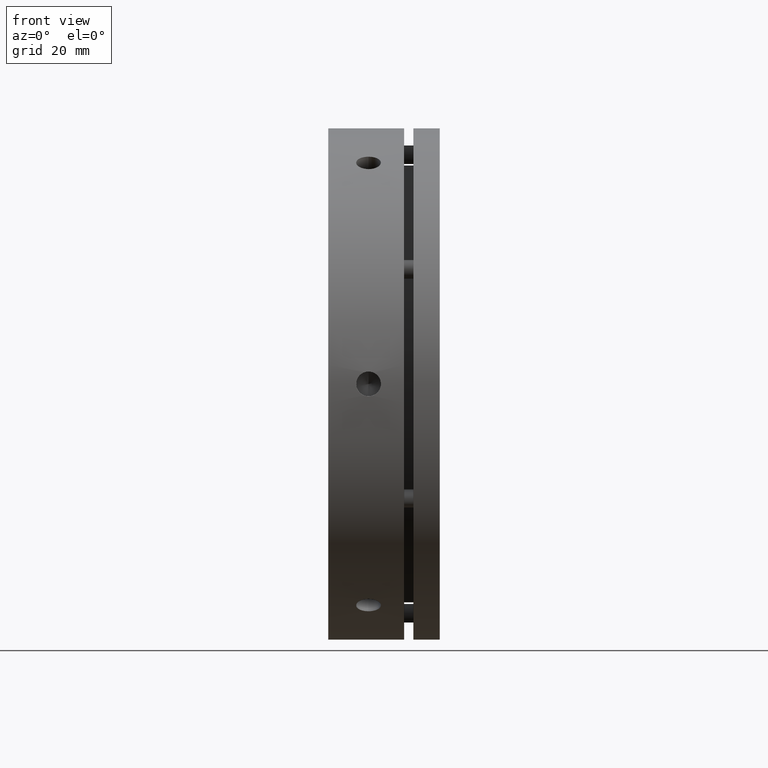
[diagram: clean part render]
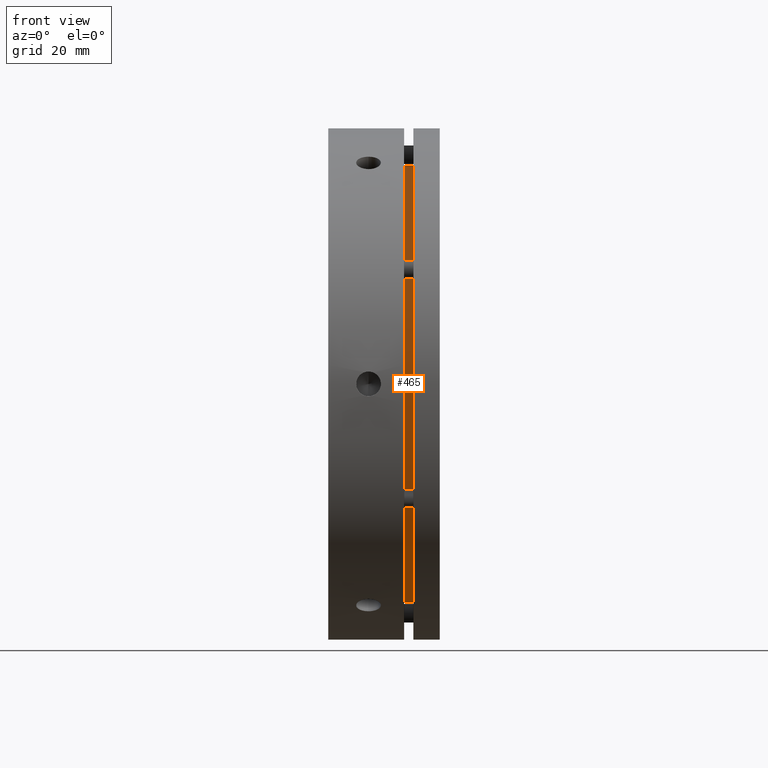
[diagram: same view with one face highlighted and labeled with its STEP entity id]
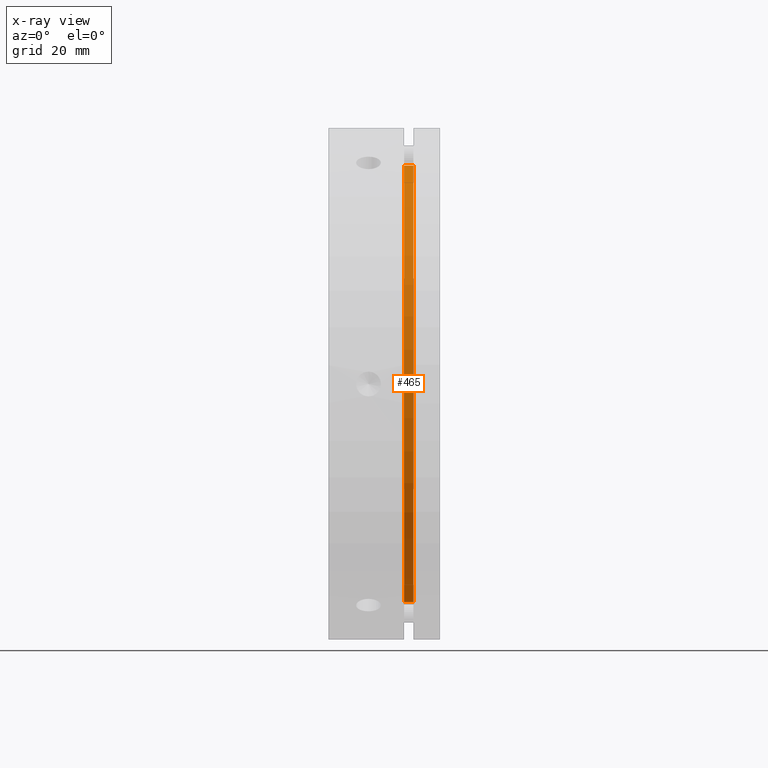
[diagram: x-ray of the same camera — body ghosted, the highlighted face saturated]
A machine part, front view. The second image highlights one B-rep face of the part: STEP entity #465.
The next image is the same camera in x-ray: the body ghosted, the highlighted face saturated — about 0% of this face is hidden behind the body in this view.
In plain terms, the highlighted cylindrical surface (partial cylindrical patch) has radius 70.5 mm, axis along (-1, 0, 0).
Its self-contained STEP definition (entity closure, byte-faithful):
#61 = CIRCLE ( 'NONE', #2466, 70.50000000000000000 ) ;
#81 = CIRCLE ( 'NONE', #2474, 70.50000000000000000 ) ;
#465 = ADVANCED_FACE ( 'NONE', ( #3334 ), #3328, .T. ) ;
#613 = DIRECTION ( 'NONE',  ( -1.000000000000000000, 0.0000000000000000000, 0.0000000000000000000 ) ) ;
#614 = CARTESIAN_POINT ( 'NONE',  ( 25.99999999999998600, 0.0000000000000000000, 70.50000000000000000 ) ) ;
#615 = DIRECTION ( 'NONE',  ( -1.000000000000000000, 0.0000000000000000000, 0.0000000000000000000 ) ) ;
#616 = CARTESIAN_POINT ( 'NONE',  ( 25.99999999999998600, 8.633759933988840600E-015, -70.50000000000000000 ) ) ;
#1178 = CARTESIAN_POINT ( 'NONE',  ( 24.49999999999998600, 0.0000000000000000000, 0.0000000000000000000 ) ) ;
#1179 = DIRECTION ( 'NONE',  ( 1.000000000000000000, -0.0000000000000000000, -0.0000000000000000000 ) ) ;
#1180 = DIRECTION ( 'NONE',  ( 0.0000000000000000000, 0.0000000000000000000, 1.000000000000000000 ) ) ;
#1234 = CARTESIAN_POINT ( 'NONE',  ( 24.49999999999998600, 0.0000000000000000000, 70.50000000000000000 ) ) ;
#1235 = CARTESIAN_POINT ( 'NONE',  ( 24.49999999999998600, 8.633759933988840600E-015, -70.50000000000000000 ) ) ;
#1238 = CARTESIAN_POINT ( 'NONE',  ( 27.49999999999998600, 0.0000000000000000000, 70.50000000000000000 ) ) ;
#1245 = CARTESIAN_POINT ( 'NONE',  ( 27.49999999999998600, 8.633759933988840600E-015, -70.50000000000000000 ) ) ;
#1326 = CARTESIAN_POINT ( 'NONE',  ( 27.49999999999998600, 0.0000000000000000000, 0.0000000000000000000 ) ) ;
#1327 = DIRECTION ( 'NONE',  ( -1.000000000000000000, 0.0000000000000000000, 0.0000000000000000000 ) ) ;
#1328 = DIRECTION ( 'NONE',  ( 0.0000000000000000000, 0.0000000000000000000, 1.000000000000000000 ) ) ;
#2466 = AXIS2_PLACEMENT_3D ( 'NONE', #1178, #1179, #1180 ) ;
#2474 = AXIS2_PLACEMENT_3D ( 'NONE', #1326, #1327, #1328 ) ;
#2539 = EDGE_CURVE ( 'NONE', #4019, #4009, #3889, .T. ) ;
#2541 = EDGE_CURVE ( 'NONE', #4012, #4008, #3883, .T. ) ;
#2969 = DIRECTION ( 'NONE',  ( 0.0000000000000000000, 0.0000000000000000000, 1.000000000000000000 ) ) ;
#2973 = DIRECTION ( 'NONE',  ( -1.000000000000000000, 0.0000000000000000000, 0.0000000000000000000 ) ) ;
#2977 = CARTESIAN_POINT ( 'NONE',  ( 25.99999999999998600, 0.0000000000000000000, 0.0000000000000000000 ) ) ;
#3020 = EDGE_CURVE ( 'NONE', #4008, #4009, #61, .T. ) ;
#3328 = CYLINDRICAL_SURFACE ( 'NONE', #3809, 70.50000000000000000 ) ;
#3334 = FACE_OUTER_BOUND ( 'NONE', #4414, .T. ) ;
#3809 = AXIS2_PLACEMENT_3D ( 'NONE', #2977, #2973, #2969 ) ;
#3881 = VECTOR ( 'NONE', #615, 1000.000000000000000 ) ;
#3883 = LINE ( 'NONE', #614, #3881 ) ;
#3884 = VECTOR ( 'NONE', #613, 1000.000000000000000 ) ;
#3889 = LINE ( 'NONE', #616, #3884 ) ;
#4008 = VERTEX_POINT ( 'NONE', #1234 ) ;
#4009 = VERTEX_POINT ( 'NONE', #1235 ) ;
#4012 = VERTEX_POINT ( 'NONE', #1238 ) ;
#4019 = VERTEX_POINT ( 'NONE', #1245 ) ;
#4195 = EDGE_CURVE ( 'NONE', #4019, #4012, #81, .T. ) ;
#4262 = ORIENTED_EDGE ( 'NONE', *, *, #4195, .T. ) ;
#4264 = ORIENTED_EDGE ( 'NONE', *, *, #2541, .T. ) ;
#4265 = ORIENTED_EDGE ( 'NONE', *, *, #3020, .T. ) ;
#4279 = ORIENTED_EDGE ( 'NONE', *, *, #2539, .F. ) ;
#4414 = EDGE_LOOP ( 'NONE', ( #4279, #4262, #4264, #4265 ) ) ;